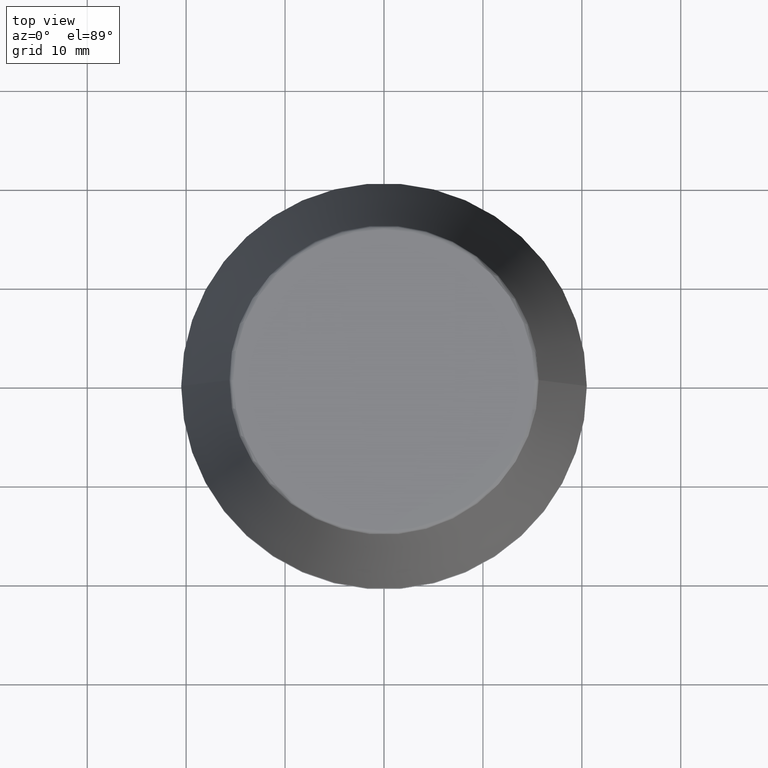
[diagram: clean part render]
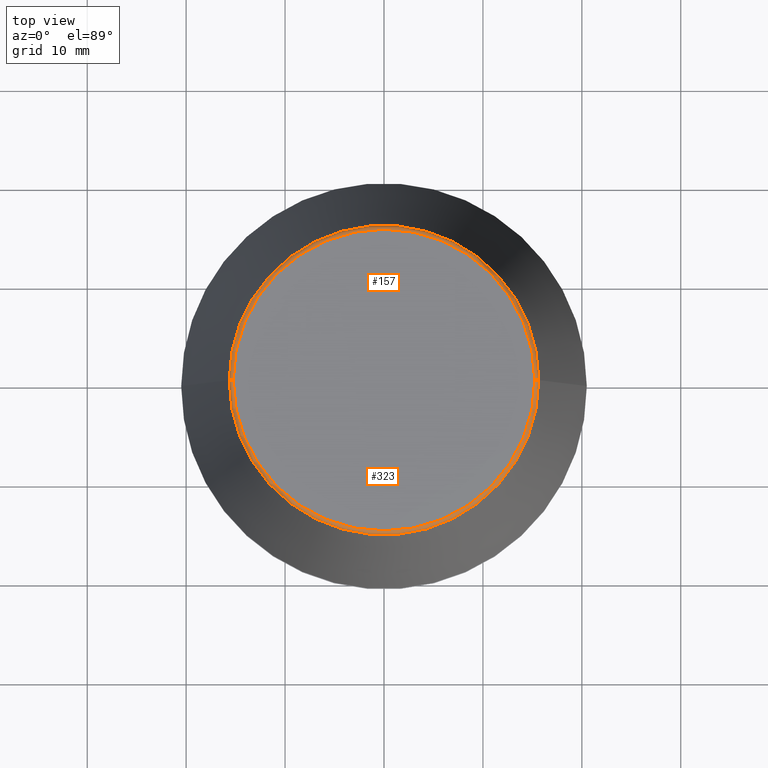
[diagram: same view with one multi-face feature highlighted, each face labeled with its STEP entity id]
A machine part, top view. The highlighted faces form ONE feature: a constant-radius fillet chain: 2 tangent blend faces with common blend radius 0.4 mm. The faces share edges in the B-rep.
Their STEP definitions:
[1] entity #323 (Torus):
#2 = CARTESIAN_POINT ( 'NONE',  ( -15.64384277279740400, 0.0000000000000000000, 45.65566924038402900 ) ) ;
#5 = CIRCLE ( 'NONE', #306, 0.3999999999999975800 ) ;
#22 = VERTEX_POINT ( 'NONE', #147 ) ;
#34 = FACE_OUTER_BOUND ( 'NONE', #192, .T. ) ;
#39 = ORIENTED_EDGE ( 'NONE', *, *, #122, .F. ) ;
#42 = ORIENTED_EDGE ( 'NONE', *, *, #199, .T. ) ;
#52 = DIRECTION ( 'NONE',  ( 0.0000000000000000000, -1.000000000000000000, 0.0000000000000000000 ) ) ;
#53 = AXIS2_PLACEMENT_3D ( 'NONE', #336, #118, #312 ) ;
#64 = CIRCLE ( 'NONE', #165, 0.3999999999999975800 ) ;
#65 = VERTEX_POINT ( 'NONE', #100 ) ;
#75 = CARTESIAN_POINT ( 'NONE',  ( 0.0000000000000000000, 0.0000000000000000000, 45.60000000000000100 ) ) ;
#86 = DIRECTION ( 'NONE',  ( -0.0000000000000000000, -0.0000000000000000000, 1.000000000000000000 ) ) ;
#100 = CARTESIAN_POINT ( 'NONE',  ( -15.24773554530077600, 1.891563625393435400E-015, 46.00000000000000000 ) ) ;
#110 = CARTESIAN_POINT ( 'NONE',  ( -15.24773554530077600, 1.867309052979791600E-015, 45.60000000000000100 ) ) ;
#118 = DIRECTION ( 'NONE',  ( -0.0000000000000000000, -0.0000000000000000000, 1.000000000000000000 ) ) ;
#122 = EDGE_CURVE ( 'NONE', #65, #22, #262, .T. ) ;
#127 = VERTEX_POINT ( 'NONE', #2 ) ;
#133 = TOROIDAL_SURFACE ( 'NONE', #318, 15.24773554530077600, 0.3999999999999991900 ) ;
#145 = AXIS2_PLACEMENT_3D ( 'NONE', #310, #86, #280 ) ;
#147 = CARTESIAN_POINT ( 'NONE',  ( 15.24773554530077600, 0.0000000000000000000, 46.00000000000000000 ) ) ;
#155 = CARTESIAN_POINT ( 'NONE',  ( 15.64384277279740400, 2.213191991290356800E-015, 45.65566924038402900 ) ) ;
#163 = DIRECTION ( 'NONE',  ( -1.000000000000000000, 1.224646799147353900E-016, 0.0000000000000000000 ) ) ;
#165 = AXIS2_PLACEMENT_3D ( 'NONE', #110, #233, #163 ) ;
#166 = DIRECTION ( 'NONE',  ( 0.0000000000000000000, 0.0000000000000000000, -1.000000000000000000 ) ) ;
#192 = EDGE_LOOP ( 'NONE', ( #241, #42, #255, #39 ) ) ;
#199 = EDGE_CURVE ( 'NONE', #127, #232, #344, .T. ) ;
#200 = CARTESIAN_POINT ( 'NONE',  ( 15.24773554530077600, 0.0000000000000000000, 45.60000000000000100 ) ) ;
#232 = VERTEX_POINT ( 'NONE', #155 ) ;
#233 = DIRECTION ( 'NONE',  ( 1.224646799147353200E-016, 1.000000000000000000, 0.0000000000000000000 ) ) ;
#241 = ORIENTED_EDGE ( 'NONE', *, *, #339, .F. ) ;
#255 = ORIENTED_EDGE ( 'NONE', *, *, #371, .T. ) ;
#262 = CIRCLE ( 'NONE', #53, 15.24773554530077600 ) ;
#280 = DIRECTION ( 'NONE',  ( 1.000000000000000000, 0.0000000000000000000, 0.0000000000000000000 ) ) ;
#306 = AXIS2_PLACEMENT_3D ( 'NONE', #200, #52, #166 ) ;
#310 = CARTESIAN_POINT ( 'NONE',  ( 0.0000000000000000000, 0.0000000000000000000, 45.65566924038402900 ) ) ;
#312 = DIRECTION ( 'NONE',  ( 1.000000000000000000, 0.0000000000000000000, 0.0000000000000000000 ) ) ;
#318 = AXIS2_PLACEMENT_3D ( 'NONE', #75, #358, #325 ) ;
#323 = ADVANCED_FACE ( 'NONE', ( #34 ), #133, .T. ) ;
#325 = DIRECTION ( 'NONE',  ( 1.000000000000000000, 0.0000000000000000000, 0.0000000000000000000 ) ) ;
#336 = CARTESIAN_POINT ( 'NONE',  ( 0.0000000000000000000, 0.0000000000000000000, 46.00000000000000000 ) ) ;
#339 = EDGE_CURVE ( 'NONE', #127, #65, #64, .T. ) ;
#344 = CIRCLE ( 'NONE', #145, 15.64384277279740400 ) ;
#358 = DIRECTION ( 'NONE',  ( -0.0000000000000000000, -0.0000000000000000000, 1.000000000000000000 ) ) ;
#371 = EDGE_CURVE ( 'NONE', #232, #22, #5, .T. ) ;
[2] entity #157 (Torus):
#2 = CARTESIAN_POINT ( 'NONE',  ( -15.64384277279740400, 0.0000000000000000000, 45.65566924038402900 ) ) ;
#5 = CIRCLE ( 'NONE', #306, 0.3999999999999975800 ) ;
#22 = VERTEX_POINT ( 'NONE', #147 ) ;
#27 = DIRECTION ( 'NONE',  ( 1.000000000000000000, 0.0000000000000000000, 0.0000000000000000000 ) ) ;
#31 = DIRECTION ( 'NONE',  ( 1.000000000000000000, 0.0000000000000000000, 0.0000000000000000000 ) ) ;
#37 = AXIS2_PLACEMENT_3D ( 'NONE', #56, #244, #27 ) ;
#52 = DIRECTION ( 'NONE',  ( 0.0000000000000000000, -1.000000000000000000, 0.0000000000000000000 ) ) ;
#56 = CARTESIAN_POINT ( 'NONE',  ( 0.0000000000000000000, 0.0000000000000000000, 45.65566924038402900 ) ) ;
#58 = CARTESIAN_POINT ( 'NONE',  ( 0.0000000000000000000, 0.0000000000000000000, 45.60000000000000100 ) ) ;
#64 = CIRCLE ( 'NONE', #165, 0.3999999999999975800 ) ;
#65 = VERTEX_POINT ( 'NONE', #100 ) ;
#70 = AXIS2_PLACEMENT_3D ( 'NONE', #106, #381, #276 ) ;
#100 = CARTESIAN_POINT ( 'NONE',  ( -15.24773554530077600, 1.891563625393435400E-015, 46.00000000000000000 ) ) ;
#106 = CARTESIAN_POINT ( 'NONE',  ( 0.0000000000000000000, 0.0000000000000000000, 46.00000000000000000 ) ) ;
#110 = CARTESIAN_POINT ( 'NONE',  ( -15.24773554530077600, 1.867309052979791600E-015, 45.60000000000000100 ) ) ;
#114 = EDGE_LOOP ( 'NONE', ( #288, #222, #152, #260 ) ) ;
#127 = VERTEX_POINT ( 'NONE', #2 ) ;
#143 = DIRECTION ( 'NONE',  ( -0.0000000000000000000, -0.0000000000000000000, 1.000000000000000000 ) ) ;
#147 = CARTESIAN_POINT ( 'NONE',  ( 15.24773554530077600, 0.0000000000000000000, 46.00000000000000000 ) ) ;
#152 = ORIENTED_EDGE ( 'NONE', *, *, #234, .F. ) ;
#155 = CARTESIAN_POINT ( 'NONE',  ( 15.64384277279740400, 2.213191991290356800E-015, 45.65566924038402900 ) ) ;
#157 = ADVANCED_FACE ( 'NONE', ( #195 ), #263, .T. ) ;
#163 = DIRECTION ( 'NONE',  ( -1.000000000000000000, 1.224646799147353900E-016, 0.0000000000000000000 ) ) ;
#165 = AXIS2_PLACEMENT_3D ( 'NONE', #110, #233, #163 ) ;
#166 = DIRECTION ( 'NONE',  ( 0.0000000000000000000, 0.0000000000000000000, -1.000000000000000000 ) ) ;
#188 = EDGE_CURVE ( 'NONE', #232, #127, #367, .T. ) ;
#195 = FACE_OUTER_BOUND ( 'NONE', #114, .T. ) ;
#200 = CARTESIAN_POINT ( 'NONE',  ( 15.24773554530077600, 0.0000000000000000000, 45.60000000000000100 ) ) ;
#222 = ORIENTED_EDGE ( 'NONE', *, *, #339, .T. ) ;
#232 = VERTEX_POINT ( 'NONE', #155 ) ;
#233 = DIRECTION ( 'NONE',  ( 1.224646799147353200E-016, 1.000000000000000000, 0.0000000000000000000 ) ) ;
#234 = EDGE_CURVE ( 'NONE', #22, #65, #383, .T. ) ;
#244 = DIRECTION ( 'NONE',  ( -0.0000000000000000000, -0.0000000000000000000, 1.000000000000000000 ) ) ;
#260 = ORIENTED_EDGE ( 'NONE', *, *, #371, .F. ) ;
#263 = TOROIDAL_SURFACE ( 'NONE', #341, 15.24773554530077600, 0.3999999999999991900 ) ;
#276 = DIRECTION ( 'NONE',  ( 1.000000000000000000, 0.0000000000000000000, 0.0000000000000000000 ) ) ;
#288 = ORIENTED_EDGE ( 'NONE', *, *, #188, .T. ) ;
#306 = AXIS2_PLACEMENT_3D ( 'NONE', #200, #52, #166 ) ;
#339 = EDGE_CURVE ( 'NONE', #127, #65, #64, .T. ) ;
#341 = AXIS2_PLACEMENT_3D ( 'NONE', #58, #143, #31 ) ;
#367 = CIRCLE ( 'NONE', #37, 15.64384277279740400 ) ;
#371 = EDGE_CURVE ( 'NONE', #232, #22, #5, .T. ) ;
#381 = DIRECTION ( 'NONE',  ( -0.0000000000000000000, -0.0000000000000000000, 1.000000000000000000 ) ) ;
#383 = CIRCLE ( 'NONE', #70, 15.24773554530077600 ) ;